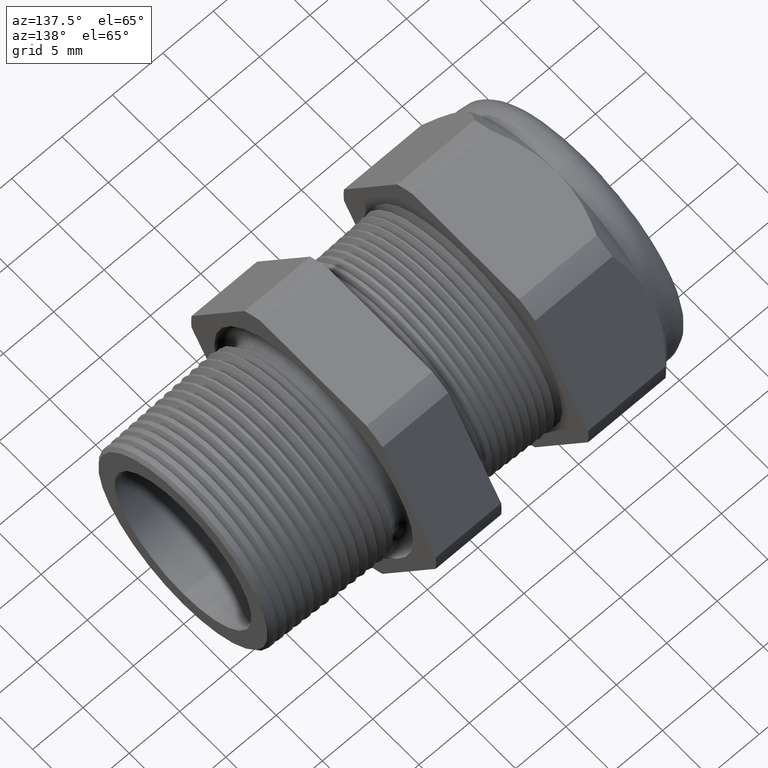
[diagram: clean part render]
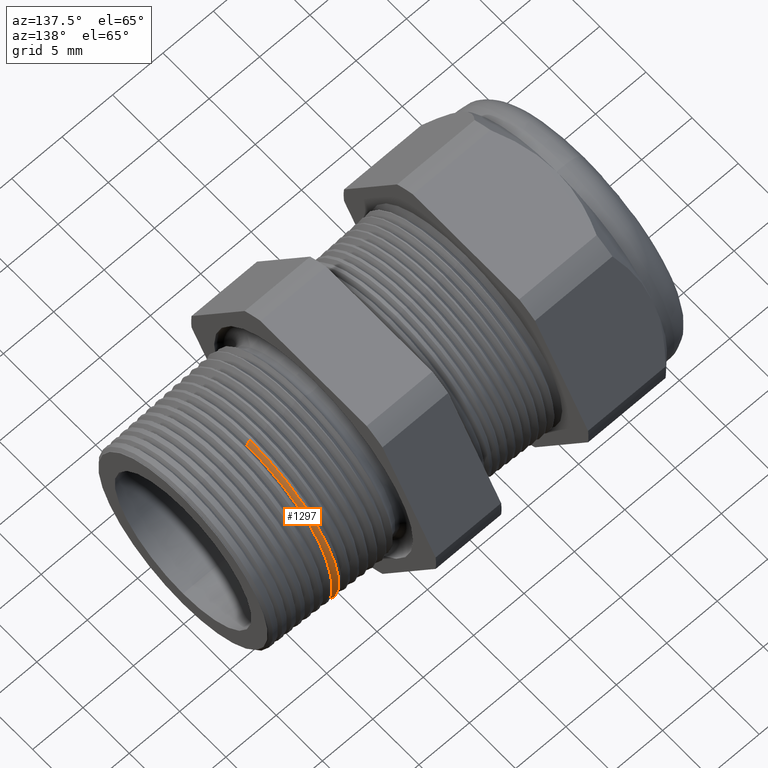
[diagram: same view with one face highlighted and labeled with its STEP entity id]
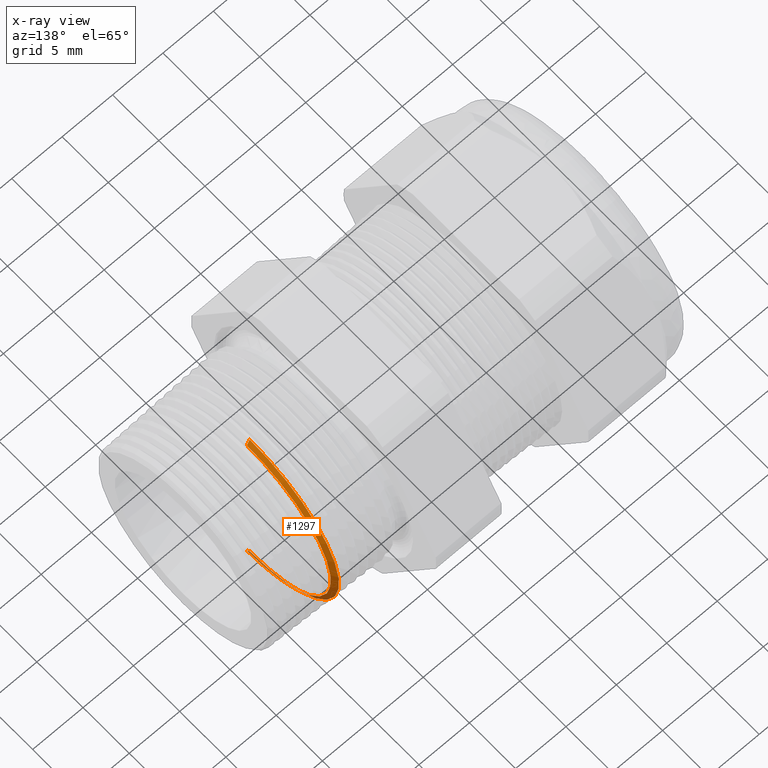
[diagram: x-ray of the same camera — body ghosted, the highlighted face saturated]
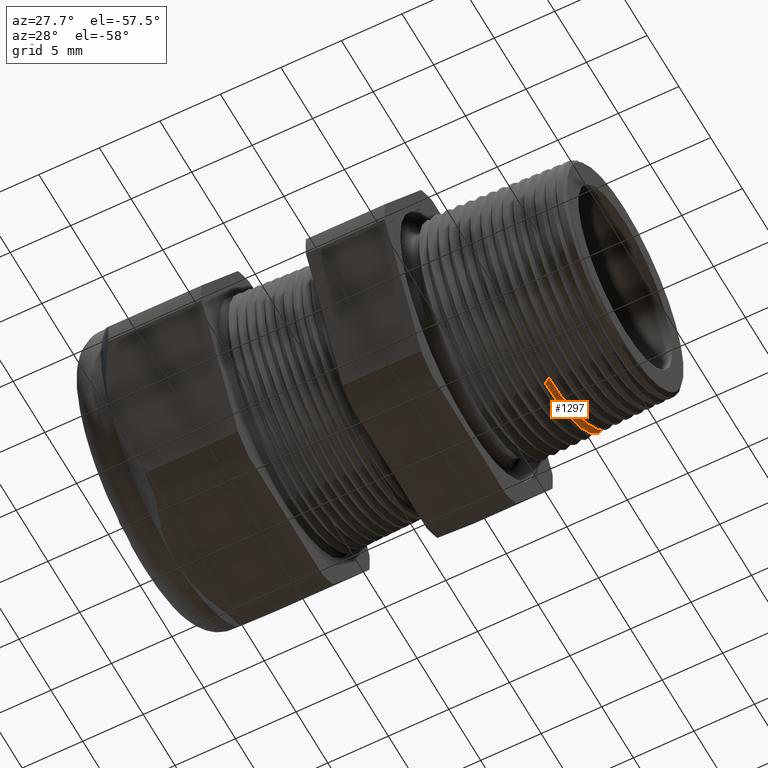
[diagram: same view with one face highlighted and labeled with its STEP entity id]
A machine part, auxiliary view. The second image highlights one B-rep face of the part: STEP entity #1297.
The next image is the same camera in x-ray: the body ghosted, the highlighted face saturated — about 7% of this face is hidden behind the body in this view.
A second angle (auxiliary view) of the same face is appended — the face is thin or edge-on in the first view.
In plain terms, the highlighted conical surface has half-angle 62 deg.
Its self-contained STEP definition (entity closure, byte-faithful):
#1284 = ORIENTED_EDGE ( 'NONE', *, *, #1285, .F. ) ;
#1285 = EDGE_CURVE ( 'NONE', #1363, #1305, #3868, .T. ) ;
#1297 = ADVANCED_FACE ( 'NONE', ( #3901 ), #3899, .T. ) ;
#1298 = EDGE_LOOP ( 'NONE', ( #1299, #1300, #1303, #1284 ) ) ;
#1299 = ORIENTED_EDGE ( 'NONE', *, *, #1315, .F. ) ;
#1300 = ORIENTED_EDGE ( 'NONE', *, *, #1301, .T. ) ;
#1301 = EDGE_CURVE ( 'NONE', #1316, #1302, #3900, .T. ) ;
#1302 = VERTEX_POINT ( 'NONE', #3891 ) ;
#1303 = ORIENTED_EDGE ( 'NONE', *, *, #1304, .T. ) ;
#1304 = EDGE_CURVE ( 'NONE', #1302, #1305, #3890, .T. ) ;
#1305 = VERTEX_POINT ( 'NONE', #3947 ) ;
#1315 = EDGE_CURVE ( 'NONE', #1316, #1363, #3928, .T. ) ;
#1316 = VERTEX_POINT ( 'NONE', #3924 ) ;
#1363 = VERTEX_POINT ( 'NONE', #4024 ) ;
#3865 = DIRECTION ( 'NONE',  ( -0.4694715627859021900, 0.0000000000000000000, 0.8829475928589208800 ) ) ;
#3866 = VECTOR ( 'NONE', #3865, 39.37007874015748100 ) ;
#3867 = CARTESIAN_POINT ( 'NONE',  ( -0.06499999999999996100, 0.0000000000000000000, 0.3892070189845242000 ) ) ;
#3868 = LINE ( 'NONE', #3867, #3866 ) ;
#3890 = CIRCLE ( 'NONE', #3951, 0.3804895674116884900 ) ;
#3891 = CARTESIAN_POINT ( 'NONE',  ( -0.06036484877867086300, 4.661684626403998700E-017, -0.3804895674116884900 ) ) ;
#3892 = DIRECTION ( 'NONE',  ( -0.4694715627859021900, 1.081298943409537900E-016, -0.8829475928589208800 ) ) ;
#3893 = VECTOR ( 'NONE', #3892, 39.37007874015748100 ) ;
#3894 = CARTESIAN_POINT ( 'NONE',  ( -0.06499999999999996100, 4.766411300050807300E-017, -0.3892070189845242000 ) ) ;
#3895 = DIRECTION ( 'NONE',  ( 0.0000000000000000000, 0.0000000000000000000, 1.000000000000000000 ) ) ;
#3896 = DIRECTION ( 'NONE',  ( -1.000000000000000000, 0.0000000000000000000, 0.0000000000000000000 ) ) ;
#3897 = CARTESIAN_POINT ( 'NONE',  ( -0.06499999999999996100, 0.0000000000000000000, 0.0000000000000000000 ) ) ;
#3898 = AXIS2_PLACEMENT_3D ( 'NONE', #3897, #3896, #3895 ) ;
#3899 = CONICAL_SURFACE ( 'NONE', #3898, 0.3892070189845242000, 1.082104136236471400 ) ;
#3900 = LINE ( 'NONE', #3894, #3893 ) ;
#3901 = FACE_OUTER_BOUND ( 'NONE', #1298, .T. ) ;
#3924 = CARTESIAN_POINT ( 'NONE',  ( -0.04873702801092103700, 4.525745833408243900E-017, -0.3586208171594783600 ) ) ;
#3925 = DIRECTION ( 'NONE',  ( 0.0000000000000000000, 0.0000000000000000000, -1.000000000000000000 ) ) ;
#3926 = DIRECTION ( 'NONE',  ( 1.000000000000000000, 0.0000000000000000000, 0.0000000000000000000 ) ) ;
#3927 = AXIS2_PLACEMENT_3D ( 'NONE', #3933, #3926, #3925 ) ;
#3928 = CIRCLE ( 'NONE', #3927, 0.3586208171594783600 ) ;
#3933 = CARTESIAN_POINT ( 'NONE',  ( -0.04873702801092103700, 0.0000000000000000000, 0.0000000000000000000 ) ) ;
#3947 = CARTESIAN_POINT ( 'NONE',  ( -0.06036484877867086300, 0.0000000000000000000, 0.3804895674116884900 ) ) ;
#3948 = DIRECTION ( 'NONE',  ( 0.0000000000000000000, 0.0000000000000000000, 1.000000000000000000 ) ) ;
#3949 = DIRECTION ( 'NONE',  ( 1.000000000000000000, 0.0000000000000000000, 0.0000000000000000000 ) ) ;
#3950 = CARTESIAN_POINT ( 'NONE',  ( -0.06036484877867086300, 0.0000000000000000000, 0.0000000000000000000 ) ) ;
#3951 = AXIS2_PLACEMENT_3D ( 'NONE', #3950, #3949, #3948 ) ;
#4024 = CARTESIAN_POINT ( 'NONE',  ( -0.04873702801092103700, 0.0000000000000000000, 0.3586208171594783600 ) ) ;